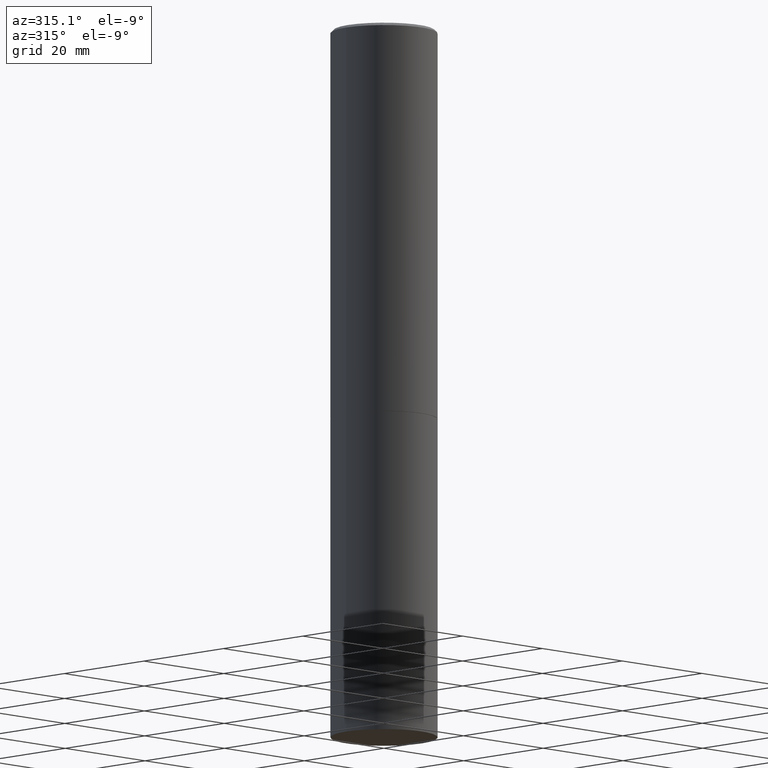
[diagram: clean part render]
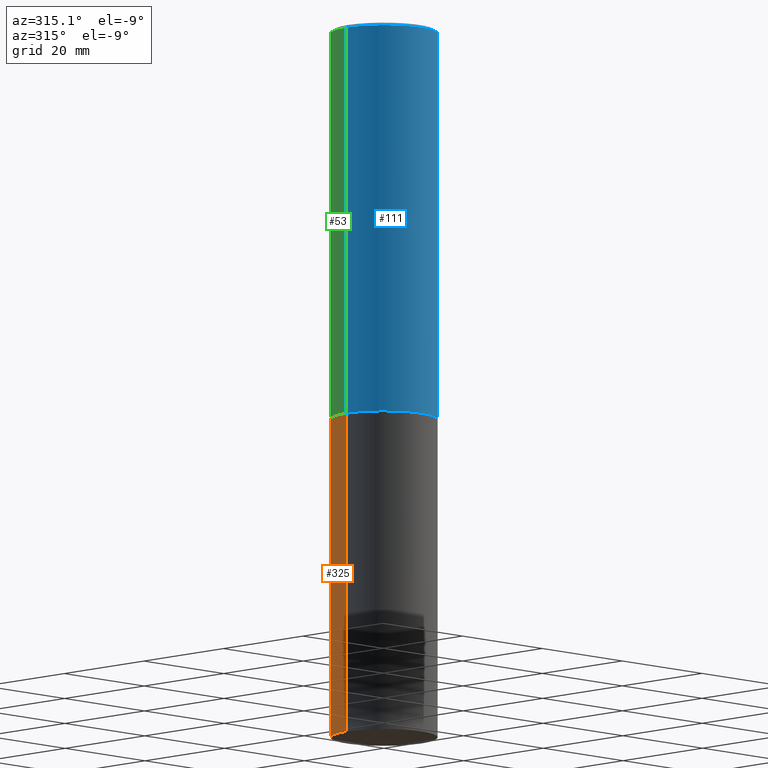
[diagram: same view with three faces highlighted in distinct colors, each labeled with its STEP entity id]
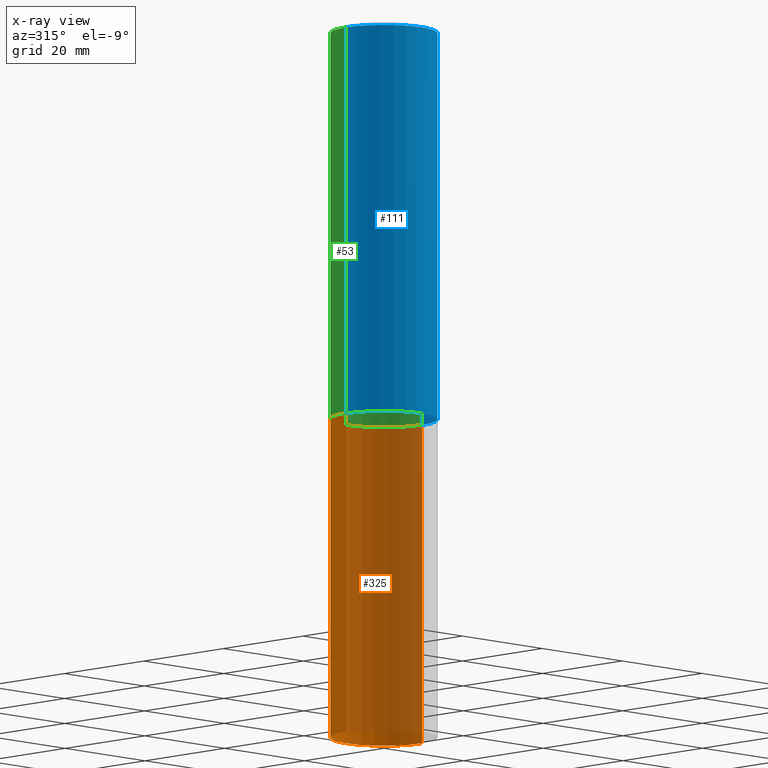
[diagram: x-ray of the same camera — body ghosted, the three highlighted faces saturated]
A machine part, auxiliary view with three faces highlighted in distinct colors.
The next image is the same camera in x-ray (body ghosted, the three faces saturated) — at least one of them is partly hidden behind the body in this view.
Their STEP definitions:

[orange] entity #325 — the highlighted cylindrical surface (partial cylindrical patch) has radius 9.525 mm, axis along (-0, 0, 1).
#11 = CIRCLE ( 'NONE', #336, 0.3750000000000000555 ) ;
#13 = CIRCLE ( 'NONE', #210, 0.3750000000000000555 ) ;
#14 = EDGE_CURVE ( 'NONE', #320, #322, #11, .T. ) ;
#19 = VECTOR ( 'NONE', #133, 39.37007874015748143 ) ;
#31 = CYLINDRICAL_SURFACE ( 'NONE', #319, 0.3750000000000000555 ) ;
#54 = FACE_OUTER_BOUND ( 'NONE', #75, .T. ) ;
#58 = DIRECTION ( 'NONE',  ( 1.000000000000000000, -6.982962677686265922E-15, 4.876176775795935793E-29 ) ) ;
#67 = DIRECTION ( 'NONE',  ( -2.445468806185136597E-29, 3.491481338843145583E-15, 1.000000000000000000 ) ) ;
#75 = EDGE_LOOP ( 'NONE', ( #166, #124, #198, #218 ) ) ;
#78 = CARTESIAN_POINT ( 'NONE',  ( 0.3750000000000000555, -2.007601769834807990E-14, -5.000000000000000000 ) ) ;
#84 = DIRECTION ( 'NONE',  ( -2.445468806185136597E-29, 3.491481338843145583E-15, 1.000000000000000000 ) ) ;
#86 = CARTESIAN_POINT ( 'NONE',  ( -0.3750000000000000555, 2.664535259100376091E-15, -1.844600658845589598E-29 ) ) ;
#95 = CARTESIAN_POINT ( 'NONE',  ( -0.3750000000000000555, -1.086495492891681496E-14, -2.750000000000000000 ) ) ;
#100 = VECTOR ( 'NONE', #229, 39.37007874015748143 ) ;
#109 = LINE ( 'NONE', #86, #100 ) ;
#124 = ORIENTED_EDGE ( 'NONE', *, *, #225, .T. ) ;
#133 = DIRECTION ( 'NONE',  ( -2.445468806185136877E-29, 3.491481338843145188E-15, 1.000000000000000000 ) ) ;
#135 = LINE ( 'NONE', #251, #19 ) ;
#166 = ORIENTED_EDGE ( 'NONE', *, *, #14, .T. ) ;
#176 = EDGE_CURVE ( 'NONE', #303, #278, #13, .T. ) ;
#181 = CARTESIAN_POINT ( 'NONE',  ( 0.3750000000000000555, -1.222018468595100145E-14, -2.750000000000000000 ) ) ;
#187 = CARTESIAN_POINT ( 'NONE',  ( -0.3750000000000000555, -1.086495492891681496E-14, -5.000000000000000000 ) ) ;
#198 = ORIENTED_EDGE ( 'NONE', *, *, #176, .F. ) ;
#210 = AXIS2_PLACEMENT_3D ( 'NONE', #339, #279, #250 ) ;
#214 = CARTESIAN_POINT ( 'NONE',  ( 0.000000000000000000, 0.000000000000000000, 0.000000000000000000 ) ) ;
#218 = ORIENTED_EDGE ( 'NONE', *, *, #361, .F. ) ;
#225 = EDGE_CURVE ( 'NONE', #322, #278, #109, .T. ) ;
#229 = DIRECTION ( 'NONE',  ( -2.445468806185136877E-29, 3.491481338843145188E-15, 1.000000000000000000 ) ) ;
#250 = DIRECTION ( 'NONE',  ( 1.000000000000000000, -6.982962677686266711E-15, 0.000000000000000000 ) ) ;
#251 = CARTESIAN_POINT ( 'NONE',  ( 0.3750000000000000555, -2.618611004132350016E-15, 1.828566290923476203E-29 ) ) ;
#278 = VERTEX_POINT ( 'NONE', #95 ) ;
#279 = DIRECTION ( 'NONE',  ( -2.445468806185136597E-29, 3.491481338843145583E-15, 1.000000000000000000 ) ) ;
#288 = DIRECTION ( 'NONE',  ( 1.000000000000000000, -6.982962677686266711E-15, 0.000000000000000000 ) ) ;
#303 = VERTEX_POINT ( 'NONE', #181 ) ;
#318 = CARTESIAN_POINT ( 'NONE',  ( 1.222734403092568523E-28, -1.745740669421572989E-14, -5.000000000000000000 ) ) ;
#319 = AXIS2_PLACEMENT_3D ( 'NONE', #214, #84, #58 ) ;
#320 = VERTEX_POINT ( 'NONE', #78 ) ;
#322 = VERTEX_POINT ( 'NONE', #187 ) ;
#325 = ADVANCED_FACE ( 'NONE', ( #54 ), #31, .T. ) ;
#336 = AXIS2_PLACEMENT_3D ( 'NONE', #318, #67, #288 ) ;
#339 = CARTESIAN_POINT ( 'NONE',  ( 6.725039217009124520E-29, -9.601573681818649859E-15, -2.750000000000000000 ) ) ;
#361 = EDGE_CURVE ( 'NONE', #320, #303, #135, .T. ) ;

[blue] entity #111 — the highlighted cylindrical surface (partial cylindrical patch) has radius 9.525 mm, axis along (-0, 0, 1).
#4 = DIRECTION ( 'NONE',  ( 1.000000000000000000, -6.982962677686266711E-15, 0.000000000000000000 ) ) ;
#12 = CYLINDRICAL_SURFACE ( 'NONE', #199, 0.3749999999999998335 ) ;
#15 = ORIENTED_EDGE ( 'NONE', *, *, #326, .F. ) ;
#20 = VERTEX_POINT ( 'NONE', #244 ) ;
#26 = CARTESIAN_POINT ( 'NONE',  ( 0.3749999999999996114, -2.642516375941185268E-15, -0.02000000000000010103 ) ) ;
#37 = DIRECTION ( 'NONE',  ( 1.000000000000000000, -6.982962677686265922E-15, 4.876176775795935793E-29 ) ) ;
#39 = EDGE_CURVE ( 'NONE', #305, #357, #269, .T. ) ;
#57 = VERTEX_POINT ( 'NONE', #312 ) ;
#65 = CARTESIAN_POINT ( 'NONE',  ( 0.000000000000000000, 0.000000000000000000, 0.000000000000000000 ) ) ;
#77 = DIRECTION ( 'NONE',  ( 1.000000000000000000, -6.982962677686266711E-15, 0.000000000000000000 ) ) ;
#80 = CIRCLE ( 'NONE', #337, 0.3749999999999996114 ) ;
#111 = ADVANCED_FACE ( 'NONE', ( #115 ), #12, .T. ) ;
#115 = FACE_OUTER_BOUND ( 'NONE', #179, .T. ) ;
#125 = CARTESIAN_POINT ( 'NONE',  ( 0.3750000000000000555, -1.221669320461215845E-14, -2.749000000000000110 ) ) ;
#149 = DIRECTION ( 'NONE',  ( -2.445468806185136597E-29, 3.491481338843145583E-15, 1.000000000000000000 ) ) ;
#153 = VECTOR ( 'NONE', #271, 39.37007874015748143 ) ;
#179 = EDGE_LOOP ( 'NONE', ( #15, #294, #201, #205 ) ) ;
#185 = CIRCLE ( 'NONE', #237, 0.3750000000000000555 ) ;
#189 = LINE ( 'NONE', #332, #153 ) ;
#199 = AXIS2_PLACEMENT_3D ( 'NONE', #65, #283, #37 ) ;
#201 = ORIENTED_EDGE ( 'NONE', *, *, #39, .T. ) ;
#205 = ORIENTED_EDGE ( 'NONE', *, *, #298, .F. ) ;
#231 = EDGE_CURVE ( 'NONE', #57, #305, #185, .T. ) ;
#233 = CARTESIAN_POINT ( 'NONE',  ( 6.722593748202941159E-29, -9.598082200479808430E-15, -2.749000000000000110 ) ) ;
#237 = AXIS2_PLACEMENT_3D ( 'NONE', #233, #348, #4 ) ;
#238 = CARTESIAN_POINT ( 'NONE',  ( 4.890937612370298557E-31, -6.982962677686327354E-17, -0.02000000000000010103 ) ) ;
#244 = CARTESIAN_POINT ( 'NONE',  ( -0.3749999999999996114, 2.548781377355483957E-15, -0.02000000000000010103 ) ) ;
#261 = VECTOR ( 'NONE', #362, 39.37007874015748143 ) ;
#269 = LINE ( 'NONE', #330, #261 ) ;
#271 = DIRECTION ( 'NONE',  ( -2.445468806185136877E-29, 3.491481338843145188E-15, 1.000000000000000000 ) ) ;
#283 = DIRECTION ( 'NONE',  ( -2.445468806185136597E-29, 3.491481338843145583E-15, 1.000000000000000000 ) ) ;
#294 = ORIENTED_EDGE ( 'NONE', *, *, #231, .T. ) ;
#298 = EDGE_CURVE ( 'NONE', #20, #357, #80, .T. ) ;
#305 = VERTEX_POINT ( 'NONE', #125 ) ;
#312 = CARTESIAN_POINT ( 'NONE',  ( -0.3749999999999999445, -2.169420654527958195E-15, -2.749000000000000110 ) ) ;
#326 = EDGE_CURVE ( 'NONE', #57, #20, #189, .T. ) ;
#330 = CARTESIAN_POINT ( 'NONE',  ( 0.3749999999999998335, -2.618611004132348439E-15, 1.828566290923475082E-29 ) ) ;
#332 = CARTESIAN_POINT ( 'NONE',  ( -0.3749999999999998335, 2.664535259100374514E-15, -1.844600658845588757E-29 ) ) ;
#337 = AXIS2_PLACEMENT_3D ( 'NONE', #238, #149, #77 ) ;
#348 = DIRECTION ( 'NONE',  ( -2.445468806185136597E-29, 3.491481338843145583E-15, 1.000000000000000000 ) ) ;
#357 = VERTEX_POINT ( 'NONE', #26 ) ;
#362 = DIRECTION ( 'NONE',  ( -2.445468806185136877E-29, 3.491481338843145188E-15, 1.000000000000000000 ) ) ;

[green] entity #53 — the highlighted cylindrical surface (partial cylindrical patch) has radius 9.525 mm, axis along (-0, 0, 1).
#5 = ORIENTED_EDGE ( 'NONE', *, *, #188, .T. ) ;
#9 = DIRECTION ( 'NONE',  ( -2.445468806185136597E-29, 3.491481338843145583E-15, 1.000000000000000000 ) ) ;
#20 = VERTEX_POINT ( 'NONE', #244 ) ;
#23 = AXIS2_PLACEMENT_3D ( 'NONE', #137, #112, #222 ) ;
#26 = CARTESIAN_POINT ( 'NONE',  ( 0.3749999999999996114, -2.642516375941185268E-15, -0.02000000000000010103 ) ) ;
#28 = ORIENTED_EDGE ( 'NONE', *, *, #326, .T. ) ;
#39 = EDGE_CURVE ( 'NONE', #305, #357, #269, .T. ) ;
#53 = ADVANCED_FACE ( 'NONE', ( #290 ), #169, .T. ) ;
#57 = VERTEX_POINT ( 'NONE', #312 ) ;
#66 = EDGE_LOOP ( 'NONE', ( #5, #28, #99, #310 ) ) ;
#89 = EDGE_CURVE ( 'NONE', #357, #20, #359, .T. ) ;
#93 = DIRECTION ( 'NONE',  ( -2.445468806185136597E-29, 3.491481338843145583E-15, 1.000000000000000000 ) ) ;
#99 = ORIENTED_EDGE ( 'NONE', *, *, #89, .F. ) ;
#112 = DIRECTION ( 'NONE',  ( -2.445468806185136597E-29, 3.491481338843145583E-15, 1.000000000000000000 ) ) ;
#125 = CARTESIAN_POINT ( 'NONE',  ( 0.3750000000000000555, -1.221669320461215845E-14, -2.749000000000000110 ) ) ;
#137 = CARTESIAN_POINT ( 'NONE',  ( 4.890937612370298557E-31, -6.982962677686327354E-17, -0.02000000000000010103 ) ) ;
#143 = DIRECTION ( 'NONE',  ( 1.000000000000000000, -6.982962677686265922E-15, 4.876176775795935793E-29 ) ) ;
#153 = VECTOR ( 'NONE', #271, 39.37007874015748143 ) ;
#169 = CYLINDRICAL_SURFACE ( 'NONE', #267, 0.3749999999999998335 ) ;
#182 = CIRCLE ( 'NONE', #195, 0.3750000000000000555 ) ;
#188 = EDGE_CURVE ( 'NONE', #305, #57, #182, .T. ) ;
#189 = LINE ( 'NONE', #332, #153 ) ;
#195 = AXIS2_PLACEMENT_3D ( 'NONE', #311, #9, #274 ) ;
#222 = DIRECTION ( 'NONE',  ( 1.000000000000000000, -6.982962677686266711E-15, 0.000000000000000000 ) ) ;
#244 = CARTESIAN_POINT ( 'NONE',  ( -0.3749999999999996114, 2.548781377355483957E-15, -0.02000000000000010103 ) ) ;
#261 = VECTOR ( 'NONE', #362, 39.37007874015748143 ) ;
#267 = AXIS2_PLACEMENT_3D ( 'NONE', #349, #93, #143 ) ;
#269 = LINE ( 'NONE', #330, #261 ) ;
#271 = DIRECTION ( 'NONE',  ( -2.445468806185136877E-29, 3.491481338843145188E-15, 1.000000000000000000 ) ) ;
#274 = DIRECTION ( 'NONE',  ( 1.000000000000000000, -6.982962677686266711E-15, 0.000000000000000000 ) ) ;
#290 = FACE_OUTER_BOUND ( 'NONE', #66, .T. ) ;
#305 = VERTEX_POINT ( 'NONE', #125 ) ;
#310 = ORIENTED_EDGE ( 'NONE', *, *, #39, .F. ) ;
#311 = CARTESIAN_POINT ( 'NONE',  ( 6.722593748202941159E-29, -9.598082200479808430E-15, -2.749000000000000110 ) ) ;
#312 = CARTESIAN_POINT ( 'NONE',  ( -0.3749999999999999445, -2.169420654527958195E-15, -2.749000000000000110 ) ) ;
#326 = EDGE_CURVE ( 'NONE', #57, #20, #189, .T. ) ;
#330 = CARTESIAN_POINT ( 'NONE',  ( 0.3749999999999998335, -2.618611004132348439E-15, 1.828566290923475082E-29 ) ) ;
#332 = CARTESIAN_POINT ( 'NONE',  ( -0.3749999999999998335, 2.664535259100374514E-15, -1.844600658845588757E-29 ) ) ;
#349 = CARTESIAN_POINT ( 'NONE',  ( 0.000000000000000000, 0.000000000000000000, 0.000000000000000000 ) ) ;
#357 = VERTEX_POINT ( 'NONE', #26 ) ;
#359 = CIRCLE ( 'NONE', #23, 0.3749999999999996114 ) ;
#362 = DIRECTION ( 'NONE',  ( -2.445468806185136877E-29, 3.491481338843145188E-15, 1.000000000000000000 ) ) ;